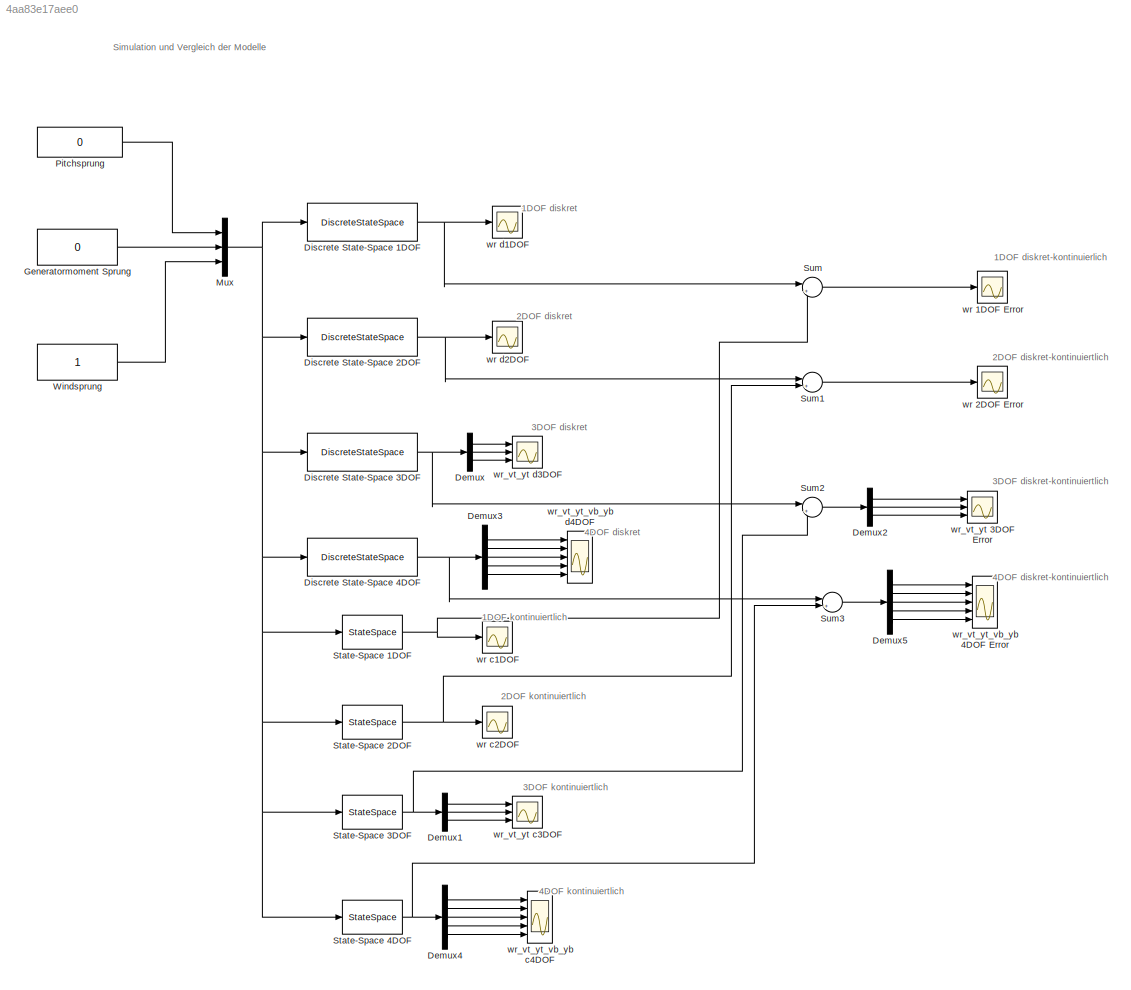
MODEL slx_4aa83e17aee0
KIND model
CONFIG AbsTol = auto
CONFIG FixedStep = T_s
CONFIG MaxStep = auto
CONFIG MinStep = auto
CONFIG RelTol = 1e-3
CONFIG SampleTimeConstraint = Unconstrained
CONFIG Solver = FixedStepAuto
CONFIG SolverMode = Auto
CONFIG SolverName = FixedStepAuto
CONFIG StartTime = 0.0
CONFIG StopTime = 200.0
BLOCK [Scope]  wr 1DOF Error
  Ports = [1]
  ScopeSpecificationString = Simulink.scopes.TimeScopeBlockCfg('CurrentConfiguration', extmgr.ConfigurationSet(extmgr.Configuration('Core','General UI',true),extmgr.Configuration('Core','Source UI',true),extmgr.Configuration('Sources','WiredSimulink',true,'DataLoggingVariableName','ScopeData4'),extmgr.Configuration('Visuals','Time Domain',true,'SerializedDisplays',{struct('MinYLimReal','-0.00000000028','MaxYLimReal','0.000000...<+1439ch>
BLOCK [Demux] Demux
  DisplayOption = bar
  Outputs = 3
  Ports = [1, 3]
BLOCK [Demux] Demux1
  DisplayOption = bar
  Outputs = 3
  Ports = [1, 3]
BLOCK [Demux] Demux2
  DisplayOption = bar
  Outputs = 3
  Ports = [1, 3]
BLOCK [Demux] Demux3
  DisplayOption = bar
  Outputs = 5
  Ports = [1, 5]
BLOCK [Demux] Demux4
  DisplayOption = bar
  Outputs = 5
  Ports = [1, 5]
BLOCK [Demux] Demux5
  DisplayOption = bar
  Outputs = 5
  Ports = [1, 5]
BLOCK [DiscreteStateSpace] Discrete State-Space 1DOF
  A = AD1
  B = BD1
  C = C1
  D = D1
  SampleTime = T_s
BLOCK [DiscreteStateSpace] Discrete State-Space 2DOF
  A = AD2
  B = BD2
  C = C2
  D = D2
  SampleTime = T_s
BLOCK [DiscreteStateSpace] Discrete State-Space 3DOF
  A = AD3
  B = BD3
  C = C3
  D = D3
  SampleTime = T_s
BLOCK [DiscreteStateSpace] Discrete State-Space 4DOF
  A = AD4
  B = BD4
  C = C4
  D = D4
  SampleTime = T_s
BLOCK [Constant] Generatormoment Sprung
  Value = 0
BLOCK [Mux] Mux
  DisplayOption = bar
  Inputs = 3
  Ports = [3, 1]
BLOCK [Constant] Pitchsprung
  Value = 0
BLOCK [StateSpace] State-Space 1DOF 
  A = AC1
  B = BC1
  C = C1
  D = D1
  Ports = [1, 1]
  X0 = 0
BLOCK [StateSpace] State-Space 2DOF
  A = AC2
  B = BC2
  C = C2
  D = D2
  Ports = [1, 1]
  X0 = 0
BLOCK [StateSpace] State-Space 3DOF 
  A = AC3
  B = BC3
  C = C3
  D = D3
  Ports = [1, 1]
  X0 = 0
BLOCK [StateSpace] State-Space 4DOF
  A = AC4
  B = BC4
  C = C4
  D = D4
  Ports = [1, 1]
  X0 = 0
BLOCK [Sum] Sum
  IconShape = round
  InputSameDT = off
  Inputs = |+-
  OutDataTypeStr = Inherit: Inherit via internal rule
  Ports = [2, 1]
  SaturateOnIntegerOverflow = off
BLOCK [Sum] Sum1
  IconShape = round
  InputSameDT = off
  Inputs = |+-
  OutDataTypeStr = Inherit: Inherit via internal rule
  Ports = [2, 1]
  SaturateOnIntegerOverflow = off
BLOCK [Sum] Sum2
  IconShape = round
  InputSameDT = off
  Inputs = |+-
  OutDataTypeStr = Inherit: Inherit via internal rule
  Ports = [2, 1]
  SaturateOnIntegerOverflow = off
BLOCK [Sum] Sum3
  IconShape = round
  InputSameDT = off
  Inputs = |+-
  OutDataTypeStr = Inherit: Inherit via internal rule
  Ports = [2, 1]
  SaturateOnIntegerOverflow = off
BLOCK [Constant] Windsprung
BLOCK [Scope] wr  d1DOF
  Ports = [1]
  ScopeSpecificationString = Simulink.scopes.TimeScopeBlockCfg('CurrentConfiguration', extmgr.ConfigurationSet(extmgr.Configuration('Core','General UI',true),extmgr.Configuration('Core','Source UI',true),extmgr.Configuration('Sources','WiredSimulink',true),extmgr.Configuration('Visuals','Time Domain',true,'SerializedDisplays',{struct('MinYLimReal','-0.06342','MaxYLimReal','0.57079','YLabelReal','','MinYLimMag','0.00000','MaxY...<+1369ch>
BLOCK [Scope] wr 2DOF Error
  Ports = [1]
  ScopeSpecificationString = Simulink.scopes.TimeScopeBlockCfg('CurrentConfiguration', extmgr.ConfigurationSet(extmgr.Configuration('Core','General UI',true),extmgr.Configuration('Core','Source UI',true),extmgr.Configuration('Sources','WiredSimulink',true,'DataLoggingVariableName','ScopeData5'),extmgr.Configuration('Visuals','Time Domain',true,'SerializedDisplays',{struct('MinYLimReal','-0.00002','MaxYLimReal','0.00014','YLab...<+1392ch>
BLOCK [Scope] wr c1DOF 
  Ports = [1]
  ScopeSpecificationString = Simulink.scopes.TimeScopeBlockCfg('CurrentConfiguration', extmgr.ConfigurationSet(extmgr.Configuration('Core','General UI',true),extmgr.Configuration('Core','Source UI',true),extmgr.Configuration('Sources','WiredSimulink',true,'DataLoggingVariableName','ScopeData1'),extmgr.Configuration('Visuals','Time Domain',true,'SerializedDisplays',{struct('MinYLimReal','-0.06353','MaxYLimReal','0.57176','YLab...<+1405ch>
BLOCK [Scope] wr c2DOF
  Ports = [1]
  ScopeSpecificationString = Simulink.scopes.TimeScopeBlockCfg('CurrentConfiguration', extmgr.ConfigurationSet(extmgr.Configuration('Core','General UI',true),extmgr.Configuration('Core','Source UI',true),extmgr.Configuration('Sources','WiredSimulink',true,'DataLoggingVariableName','ScopeData2'),extmgr.Configuration('Visuals','Time Domain',true,'SerializedDisplays',{struct('MinYLimReal','-0.05213','MaxYLimReal','0.46914','YLab...<+1400ch>
BLOCK [Scope] wr d2DOF
  Ports = [1]
  ScopeSpecificationString = Simulink.scopes.TimeScopeBlockCfg('CurrentConfiguration', extmgr.ConfigurationSet(extmgr.Configuration('Core','General UI',true),extmgr.Configuration('Core','Source UI',true),extmgr.Configuration('Sources','WiredSimulink',true,'DataLoggingVariableName','ScopeData1'),extmgr.Configuration('Visuals','Time Domain',true,'SerializedDisplays',{struct('MinYLimReal','-0.05213','MaxYLimReal','0.46914','YLab...<+1691ch>
BLOCK [Scope] wr_vt_yt 3DOF Error
  NumInputPorts = 3
  Ports = [3]
  ScopeSpecificationString = Simulink.scopes.TimeScopeBlockCfg('CurrentConfiguration', extmgr.ConfigurationSet(extmgr.Configuration('Core','General UI',true),extmgr.Configuration('Core','Source UI',true),extmgr.Configuration('Sources','WiredSimulink',true,'DataLoggingVariableName','ScopeData6'),extmgr.Configuration('Visuals','Time Domain',true,'SerializedDisplays',{struct('MinYLimReal','-0.000009','MaxYLimReal','0.000054','YL...<+2679ch>
BLOCK [Scope] wr_vt_yt c3DOF
  NumInputPorts = 3
  Ports = [3]
  ScopeSpecificationString = Simulink.scopes.TimeScopeBlockCfg('CurrentConfiguration', extmgr.ConfigurationSet(extmgr.Configuration('Core','General UI',true),extmgr.Configuration('Core','Source UI',true),extmgr.Configuration('Sources','WiredSimulink',true,'DataLoggingVariableName','ScopeData3'),extmgr.Configuration('Visuals','Time Domain',true,'SerializedDisplays',{struct('MinYLimReal','-0.05213','MaxYLimReal','0.46914','YLab...<+2677ch>
BLOCK [Scope] wr_vt_yt d3DOF 
  NumInputPorts = 3
  Ports = [3]
  ScopeSpecificationString = Simulink.scopes.TimeScopeBlockCfg('CurrentConfiguration', extmgr.ConfigurationSet(extmgr.Configuration('Core','General UI',true),extmgr.Configuration('Core','Source UI',true),extmgr.Configuration('Sources','WiredSimulink',true,'DataLoggingVariableName','ScopeData1'),extmgr.Configuration('Visuals','Time Domain',true,'InputProcessing','FrameProcessing','SerializedDisplays',{struct('MinYLimReal','-0....<+3143ch>
BLOCK [Scope] wr_vt_yt_vb_yb 4DOF Error
  NumInputPorts = 5
  Ports = [5]
  ScopeSpecificationString = Simulink.scopes.TimeScopeBlockCfg('CurrentConfiguration', extmgr.ConfigurationSet(extmgr.Configuration('Core','General UI',true),extmgr.Configuration('Core','Source UI',true),extmgr.Configuration('Sources','WiredSimulink',true,'DataLoggingVariableName','ScopeData3'),extmgr.Configuration('Visuals','Time Domain',true,'InputProcessing','FrameProcessing','SerializedDisplays',{struct('MinYLimReal','-0....<+5172ch>
BLOCK [Scope] wr_vt_yt_vb_yb c4DOF
  NumInputPorts = 5
  Ports = [5]
  ScopeSpecificationString = Simulink.scopes.TimeScopeBlockCfg('CurrentConfiguration', extmgr.ConfigurationSet(extmgr.Configuration('Core','General UI',true),extmgr.Configuration('Core','Source UI',true),extmgr.Configuration('Sources','WiredSimulink',true,'DataLoggingVariableName','ScopeData2'),extmgr.Configuration('Visuals','Time Domain',true,'InputProcessing','FrameProcessing','SerializedDisplays',{struct('MinYLimReal','-0....<+5168ch>
BLOCK [Scope] wr_vt_yt_vb_yb d4DOF 
  NumInputPorts = 5
  Ports = [5]
  ScopeSpecificationString = Simulink.scopes.TimeScopeBlockCfg('CurrentConfiguration', extmgr.ConfigurationSet(extmgr.Configuration('Core','General UI',true),extmgr.Configuration('Core','Source UI',true),extmgr.Configuration('Sources','WiredSimulink',true,'DataLoggingVariableName','ScopeData1'),extmgr.Configuration('Visuals','Time Domain',true,'InputProcessing','FrameProcessing','SerializedDisplays',{struct('MinYLimReal','-0....<+5171ch>
ANNOTATION (root): 1DOF diskret
ANNOTATION (root): 1DOF kontinuiertlich
ANNOTATION (root): 2DOF diskret-kontinuiertlich
ANNOTATION (root): 2DOF diskret
ANNOTATION (root): 2DOF kontinuiertlich
ANNOTATION (root): 3DOF diskret-kontinuiertlich
ANNOTATION (root): 3DOF diskret
ANNOTATION (root): 3DOF kontinuiertlich
ANNOTATION (root): 4DOF diskret-kontinuiertlich
ANNOTATION (root): 4DOF diskret
ANNOTATION (root): 4DOF kontinuiertlich
ANNOTATION (root): 1DOF diskret-kontinuierlich
ANNOTATION (root): Simulation und Vergleich der Modelle
LINE Demux1:1 -> wr_vt_yt c3DOF:1
LINE Demux1:2 -> wr_vt_yt c3DOF:2
LINE Demux1:3 -> wr_vt_yt c3DOF:3
LINE Demux2:1 -> wr_vt_yt 3DOF Error:1
LINE Demux2:2 -> wr_vt_yt 3DOF Error:2
LINE Demux2:3 -> wr_vt_yt 3DOF Error:3
LINE Demux3:1 -> wr_vt_yt_vb_yb d4DOF :1
LINE Demux3:2 -> wr_vt_yt_vb_yb d4DOF :2
LINE Demux3:3 -> wr_vt_yt_vb_yb d4DOF :3
LINE Demux3:4 -> wr_vt_yt_vb_yb d4DOF :4
LINE Demux3:5 -> wr_vt_yt_vb_yb d4DOF :5
LINE Demux4:1 -> wr_vt_yt_vb_yb c4DOF:1
LINE Demux4:2 -> wr_vt_yt_vb_yb c4DOF:2
LINE Demux4:3 -> wr_vt_yt_vb_yb c4DOF:3
LINE Demux4:4 -> wr_vt_yt_vb_yb c4DOF:4
LINE Demux4:5 -> wr_vt_yt_vb_yb c4DOF:5
LINE Demux5:1 -> wr_vt_yt_vb_yb 4DOF Error:1
LINE Demux5:2 -> wr_vt_yt_vb_yb 4DOF Error:2
LINE Demux5:3 -> wr_vt_yt_vb_yb 4DOF Error:3
LINE Demux5:4 -> wr_vt_yt_vb_yb 4DOF Error:4
LINE Demux5:5 -> wr_vt_yt_vb_yb 4DOF Error:5
LINE Demux:1 -> wr_vt_yt d3DOF :1
LINE Demux:2 -> wr_vt_yt d3DOF :2
LINE Demux:3 -> wr_vt_yt d3DOF :3
NET Discrete State-Space 1DOF:1 -> Sum:1, wr  d1DOF:1
NET Discrete State-Space 2DOF:1 -> Sum1:1, wr d2DOF:1
NET Discrete State-Space 3DOF:1 -> Demux:1, Sum2:1
NET Discrete State-Space 4DOF:1 -> Demux3:1, Sum3:1
LINE Generatormoment Sprung:1 -> Mux:2
NET Mux:1 -> Discrete State-Space 1DOF:1, Discrete State-Space 2DOF:1, Discrete State-Space 3DOF:1, Discrete State-Space 4DOF:1, State-Space 1DOF :1, State-Space 2DOF:1, State-Space 3DOF :1, State-Space 4DOF:1
LINE Pitchsprung:1 -> Mux:1
NET State-Space 1DOF :1 -> Sum:2, wr c1DOF :1
NET State-Space 2DOF:1 -> Sum1:2, wr c2DOF:1
NET State-Space 3DOF :1 -> Demux1:1, Sum2:2
NET State-Space 4DOF:1 -> Demux4:1, Sum3:2
LINE Sum1:1 -> wr 2DOF Error:1
LINE Sum2:1 -> Demux2:1
LINE Sum3:1 -> Demux5:1
LINE Sum:1 ->  wr 1DOF Error:1
LINE Windsprung:1 -> Mux:3
note: NET lines group one-source signal fan-out (src -> all destinations, sorted); 1:1 wires keep LINE
